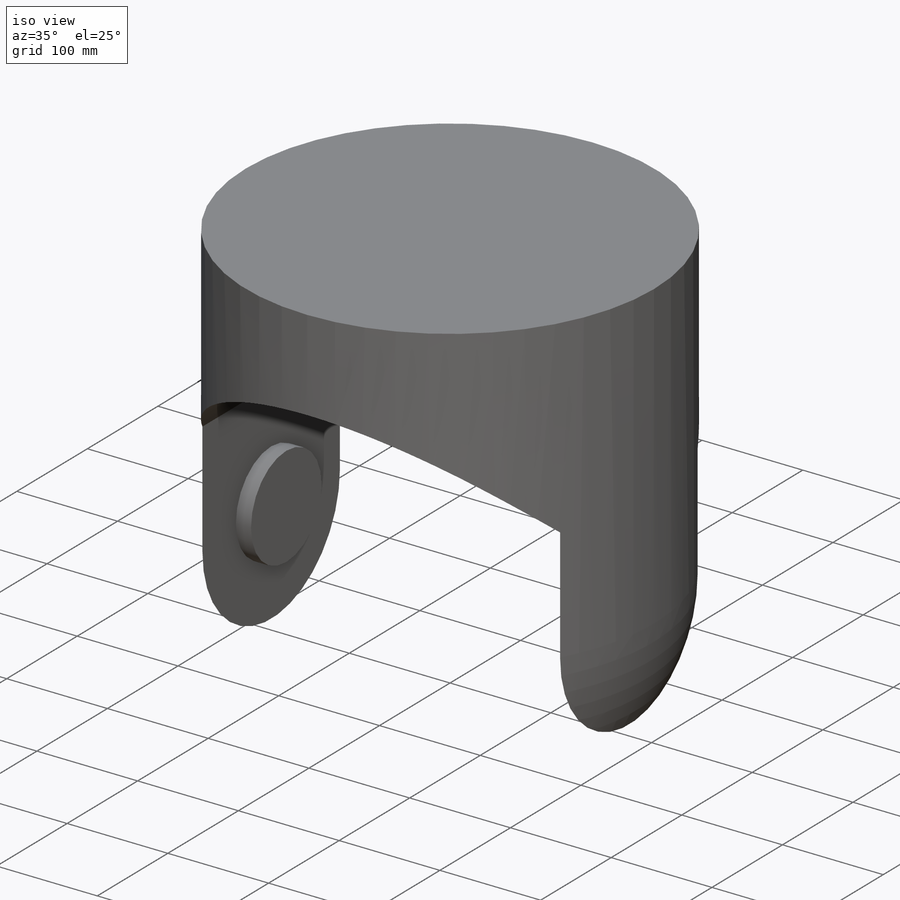
[diagram: iso view]
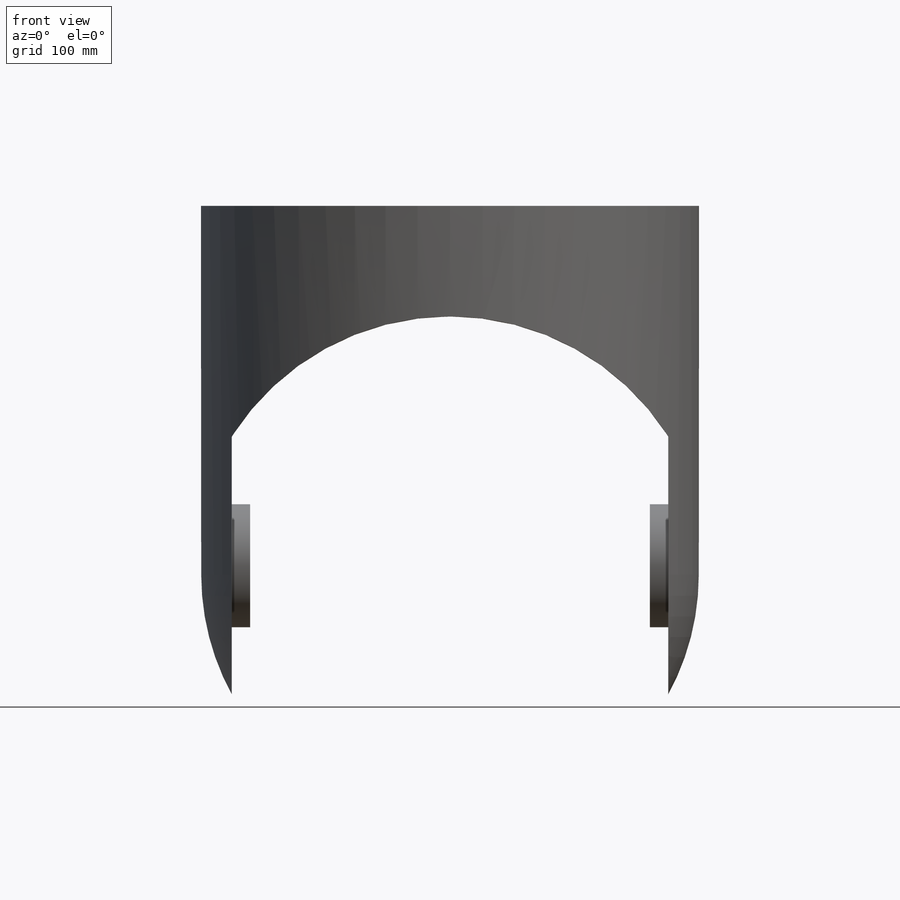
[diagram: front view]
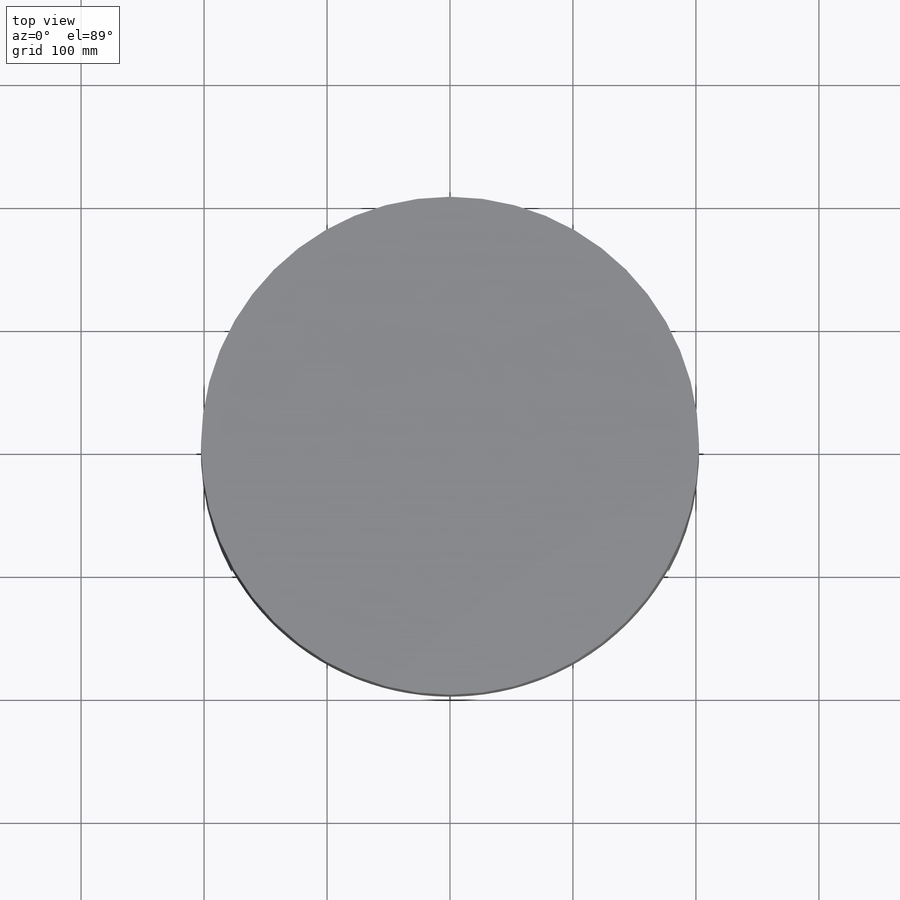
[diagram: top view]
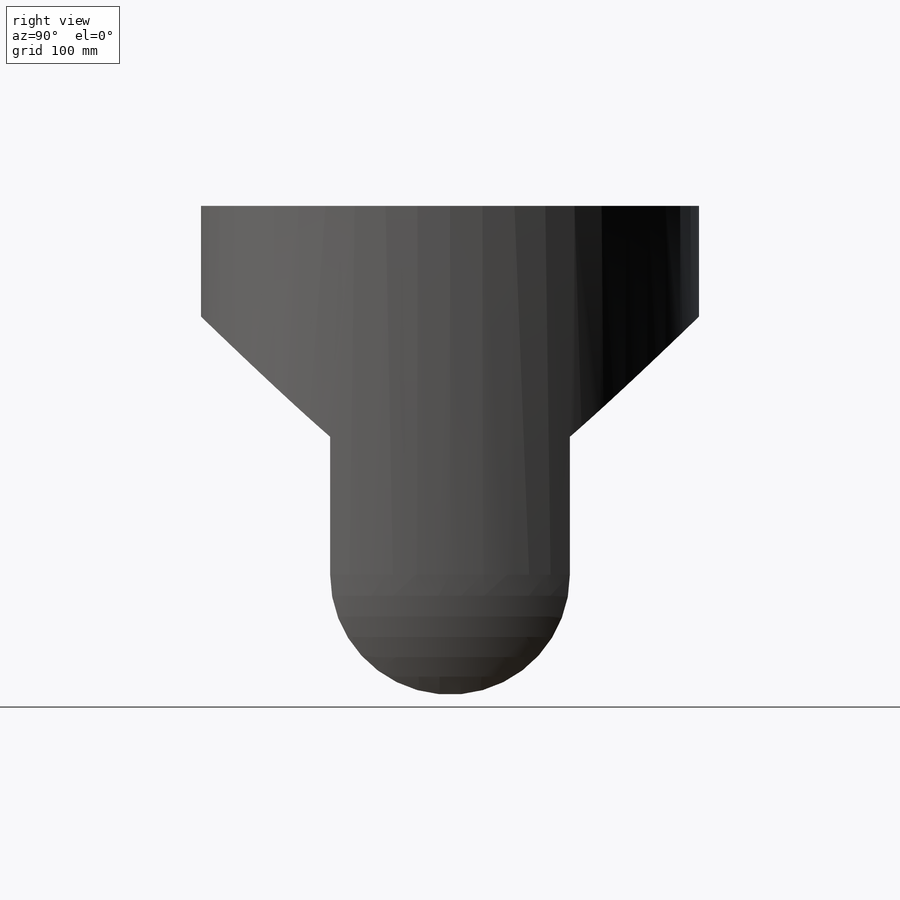
[diagram: right view]
SOLIDWORKS PART (.sldprt)
format: sldprt  version: not decoded by parser v0  size: 163,328 bytes
history: native  units: mm
features: sketch x4, extrude x2, material x1, revolve x1, cut_extrude x1 (+16 scaffold rows collapsed)
feature tree (25):
  scaffold x16  (default folders/planes/origin — collapsed)
  material  "Material <not specified>"
  sketch  "Sketch1"  dims[D1=202.5mm D2=300.0mm D3=502.5mm D4=251.25mm]
  revolve  "Revolve1"  Angle=360deg
  sketch  "Sketch3"  dims[c1.D3=210.0mm c1.D1=25.0mm c1.D2=25.0mm c2.D1=25.0mm c2.D2=~289.583585mm c3.D2=~1.356686deg c4.D2=25.0mm]
  cut_extrude  "Cut-Extrude1"  Depth=431mm
  sketch  "Sketch6"  dims[D1=100.0mm]
  extrude  "Boss-Extrude4"  Depth=15mm
  sketch  "Sketch7"  dims[D1=100.0mm]
  extrude  "Boss-Extrude5"  Depth=15mm
decode coverage: 8 of 8 modeling features carry decoded parameters
note: ~ marks probable driven/reference dimensions
note: suppression state not decoded; provenance and decode notes live in map.json
